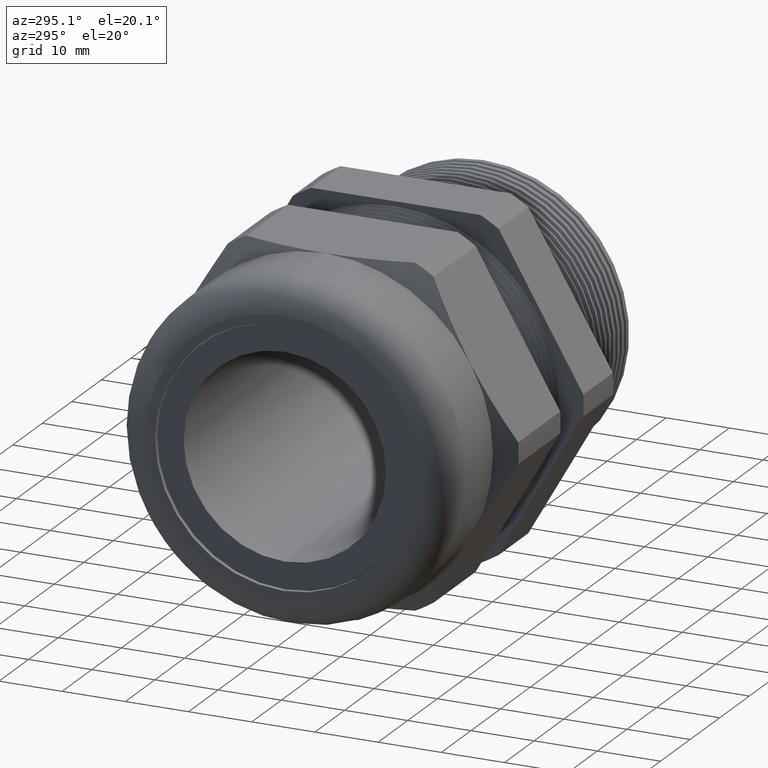
[diagram: clean part render]
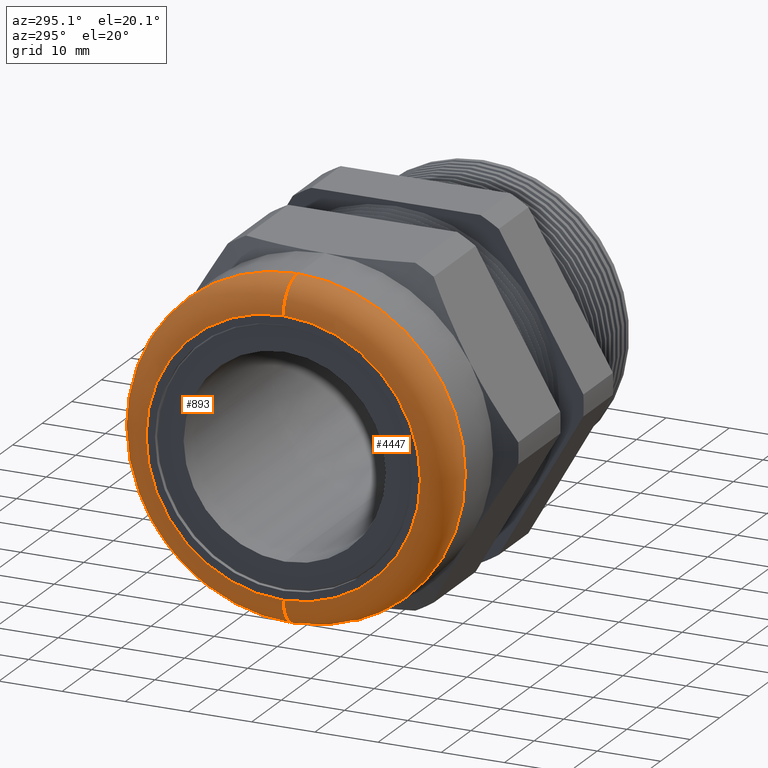
[diagram: same view with one multi-face feature highlighted, each face labeled with its STEP entity id]
A machine part, auxiliary view. The highlighted faces form ONE feature: a constant-radius fillet chain: 2 tangent blend faces with common blend radius 4.8362 mm. The faces share edges in the B-rep.
Their STEP definitions:
[1] entity #893 (Torus):
#891 = EDGE_LOOP ( 'NONE', ( #894, #916, #919, #922 ) ) ;
#893 = ADVANCED_FACE ( 'NONE', ( #2995 ), #2993, .T. ) ;
#894 = ORIENTED_EDGE ( 'NONE', *, *, #913, .F. ) ;
#913 = EDGE_CURVE ( 'NONE', #914, #915, #3023, .T. ) ;
#914 = VERTEX_POINT ( 'NONE', #3018 ) ;
#915 = VERTEX_POINT ( 'NONE', #3017 ) ;
#916 = ORIENTED_EDGE ( 'NONE', *, *, #917, .T. ) ;
#917 = EDGE_CURVE ( 'NONE', #914, #918, #3016, .T. ) ;
#918 = VERTEX_POINT ( 'NONE', #3011 ) ;
#919 = ORIENTED_EDGE ( 'NONE', *, *, #920, .F. ) ;
#920 = EDGE_CURVE ( 'NONE', #921, #918, #3010, .T. ) ;
#921 = VERTEX_POINT ( 'NONE', #3005 ) ;
#922 = ORIENTED_EDGE ( 'NONE', *, *, #924, .F. ) ;
#924 = EDGE_CURVE ( 'NONE', #915, #921, #3003, .T. ) ;
#2990 = DIRECTION ( 'NONE',  ( 0.0000000000000000000, 0.0000000000000000000, -1.000000000000000000 ) ) ;
#2991 = DIRECTION ( 'NONE',  ( 1.000000000000000000, 0.0000000000000000000, 0.0000000000000000000 ) ) ;
#2992 = AXIS2_PLACEMENT_3D ( 'NONE', #2994, #2991, #2990 ) ;
#2993 = TOROIDAL_SURFACE ( 'NONE', #2992, 0.8545999999999995800, 0.1904000000000001500 ) ;
#2994 = CARTESIAN_POINT ( 'NONE',  ( -1.699599999999999600, 0.0000000000000000000, 0.0000000000000000000 ) ) ;
#2995 = FACE_OUTER_BOUND ( 'NONE', #891, .T. ) ;
#3000 = DIRECTION ( 'NONE',  ( 0.0000000000000000000, -1.000000000000000000, 0.0000000000000000000 ) ) ;
#3001 = CARTESIAN_POINT ( 'NONE',  ( -1.699599999999999600, 0.0000000000000000000, -0.8545999999999995800 ) ) ;
#3002 = AXIS2_PLACEMENT_3D ( 'NONE', #3001, #3000, #3065 ) ;
#3003 = CIRCLE ( 'NONE', #3002, 0.1904000000000001000 ) ;
#3005 = CARTESIAN_POINT ( 'NONE',  ( -1.699599999999999600, 1.279755905108983600E-016, -1.044999999999999700 ) ) ;
#3006 = DIRECTION ( 'NONE',  ( 0.0000000000000000000, 0.0000000000000000000, -1.000000000000000000 ) ) ;
#3007 = DIRECTION ( 'NONE',  ( 1.000000000000000000, 0.0000000000000000000, 0.0000000000000000000 ) ) ;
#3008 = CARTESIAN_POINT ( 'NONE',  ( -1.699599999999999600, 0.0000000000000000000, 0.0000000000000000000 ) ) ;
#3009 = AXIS2_PLACEMENT_3D ( 'NONE', #3008, #3007, #3006 ) ;
#3010 = CIRCLE ( 'NONE', #3009, 1.044999999999999700 ) ;
#3011 = CARTESIAN_POINT ( 'NONE',  ( -1.699599999999999600, 0.0000000000000000000, 1.044999999999999700 ) ) ;
#3012 = DIRECTION ( 'NONE',  ( 0.0000000000000000000, 1.224646799147353500E-016, 1.000000000000000000 ) ) ;
#3013 = DIRECTION ( 'NONE',  ( 0.0000000000000000000, 1.000000000000000000, -1.224646799147353200E-016 ) ) ;
#3014 = CARTESIAN_POINT ( 'NONE',  ( -1.699599999999999600, 1.046583154551327500E-016, 0.8545999999999995800 ) ) ;
#3015 = AXIS2_PLACEMENT_3D ( 'NONE', #3014, #3013, #3012 ) ;
#3016 = CIRCLE ( 'NONE', #3015, 0.1904000000000001000 ) ;
#3017 = CARTESIAN_POINT ( 'NONE',  ( -1.889999999999999700, 0.0000000000000000000, -0.8545999999999995800 ) ) ;
#3018 = CARTESIAN_POINT ( 'NONE',  ( -1.889999999999999700, 1.163169529830155800E-016, 0.8545999999999995800 ) ) ;
#3019 = DIRECTION ( 'NONE',  ( 0.0000000000000000000, 0.0000000000000000000, -1.000000000000000000 ) ) ;
#3020 = DIRECTION ( 'NONE',  ( -1.000000000000000000, 0.0000000000000000000, 0.0000000000000000000 ) ) ;
#3021 = CARTESIAN_POINT ( 'NONE',  ( -1.889999999999999700, 0.0000000000000000000, 0.0000000000000000000 ) ) ;
#3022 = AXIS2_PLACEMENT_3D ( 'NONE', #3021, #3020, #3019 ) ;
#3023 = CIRCLE ( 'NONE', #3022, 0.8545999999999995800 ) ;
#3065 = DIRECTION ( 'NONE',  ( 0.0000000000000000000, 0.0000000000000000000, -1.000000000000000000 ) ) ;
[2] entity #4447 (Torus):
#157 = EDGE_CURVE ( 'NONE', #915, #914, #1672, .T. ) ;
#914 = VERTEX_POINT ( 'NONE', #3018 ) ;
#915 = VERTEX_POINT ( 'NONE', #3017 ) ;
#917 = EDGE_CURVE ( 'NONE', #914, #918, #3016, .T. ) ;
#918 = VERTEX_POINT ( 'NONE', #3011 ) ;
#921 = VERTEX_POINT ( 'NONE', #3005 ) ;
#924 = EDGE_CURVE ( 'NONE', #915, #921, #3003, .T. ) ;
#1668 = DIRECTION ( 'NONE',  ( 0.0000000000000000000, 0.0000000000000000000, -1.000000000000000000 ) ) ;
#1669 = DIRECTION ( 'NONE',  ( -1.000000000000000000, 0.0000000000000000000, 0.0000000000000000000 ) ) ;
#1670 = CARTESIAN_POINT ( 'NONE',  ( -1.889999999999999700, 0.0000000000000000000, 0.0000000000000000000 ) ) ;
#1671 = AXIS2_PLACEMENT_3D ( 'NONE', #1670, #1669, #1668 ) ;
#1672 = CIRCLE ( 'NONE', #1671, 0.8545999999999995800 ) ;
#3000 = DIRECTION ( 'NONE',  ( 0.0000000000000000000, -1.000000000000000000, 0.0000000000000000000 ) ) ;
#3001 = CARTESIAN_POINT ( 'NONE',  ( -1.699599999999999600, 0.0000000000000000000, -0.8545999999999995800 ) ) ;
#3002 = AXIS2_PLACEMENT_3D ( 'NONE', #3001, #3000, #3065 ) ;
#3003 = CIRCLE ( 'NONE', #3002, 0.1904000000000001000 ) ;
#3005 = CARTESIAN_POINT ( 'NONE',  ( -1.699599999999999600, 1.279755905108983600E-016, -1.044999999999999700 ) ) ;
#3011 = CARTESIAN_POINT ( 'NONE',  ( -1.699599999999999600, 0.0000000000000000000, 1.044999999999999700 ) ) ;
#3012 = DIRECTION ( 'NONE',  ( 0.0000000000000000000, 1.224646799147353500E-016, 1.000000000000000000 ) ) ;
#3013 = DIRECTION ( 'NONE',  ( 0.0000000000000000000, 1.000000000000000000, -1.224646799147353200E-016 ) ) ;
#3014 = CARTESIAN_POINT ( 'NONE',  ( -1.699599999999999600, 1.046583154551327500E-016, 0.8545999999999995800 ) ) ;
#3015 = AXIS2_PLACEMENT_3D ( 'NONE', #3014, #3013, #3012 ) ;
#3016 = CIRCLE ( 'NONE', #3015, 0.1904000000000001000 ) ;
#3017 = CARTESIAN_POINT ( 'NONE',  ( -1.889999999999999700, 0.0000000000000000000, -0.8545999999999995800 ) ) ;
#3018 = CARTESIAN_POINT ( 'NONE',  ( -1.889999999999999700, 1.163169529830155800E-016, 0.8545999999999995800 ) ) ;
#3065 = DIRECTION ( 'NONE',  ( 0.0000000000000000000, 0.0000000000000000000, -1.000000000000000000 ) ) ;
#4159 = DIRECTION ( 'NONE',  ( 0.0000000000000000000, 0.0000000000000000000, -1.000000000000000000 ) ) ;
#4160 = DIRECTION ( 'NONE',  ( 1.000000000000000000, 0.0000000000000000000, 0.0000000000000000000 ) ) ;
#4161 = CARTESIAN_POINT ( 'NONE',  ( -1.699599999999999600, 0.0000000000000000000, 0.0000000000000000000 ) ) ;
#4162 = AXIS2_PLACEMENT_3D ( 'NONE', #4161, #4160, #4159 ) ;
#4163 = CIRCLE ( 'NONE', #4162, 1.044999999999999700 ) ;
#4199 = DIRECTION ( 'NONE',  ( 0.0000000000000000000, 0.0000000000000000000, -1.000000000000000000 ) ) ;
#4200 = DIRECTION ( 'NONE',  ( 1.000000000000000000, 0.0000000000000000000, 0.0000000000000000000 ) ) ;
#4201 = CARTESIAN_POINT ( 'NONE',  ( -1.699599999999999600, 0.0000000000000000000, 0.0000000000000000000 ) ) ;
#4202 = AXIS2_PLACEMENT_3D ( 'NONE', #4201, #4200, #4199 ) ;
#4203 = TOROIDAL_SURFACE ( 'NONE', #4202, 0.8545999999999995800, 0.1904000000000001500 ) ;
#4204 = FACE_OUTER_BOUND ( 'NONE', #4445, .T. ) ;
#4395 = EDGE_CURVE ( 'NONE', #918, #921, #4163, .T. ) ;
#4434 = ORIENTED_EDGE ( 'NONE', *, *, #157, .F. ) ;
#4438 = ORIENTED_EDGE ( 'NONE', *, *, #924, .T. ) ;
#4440 = ORIENTED_EDGE ( 'NONE', *, *, #4395, .F. ) ;
#4442 = ORIENTED_EDGE ( 'NONE', *, *, #917, .F. ) ;
#4445 = EDGE_LOOP ( 'NONE', ( #4442, #4434, #4438, #4440 ) ) ;
#4447 = ADVANCED_FACE ( 'NONE', ( #4204 ), #4203, .T. ) ;